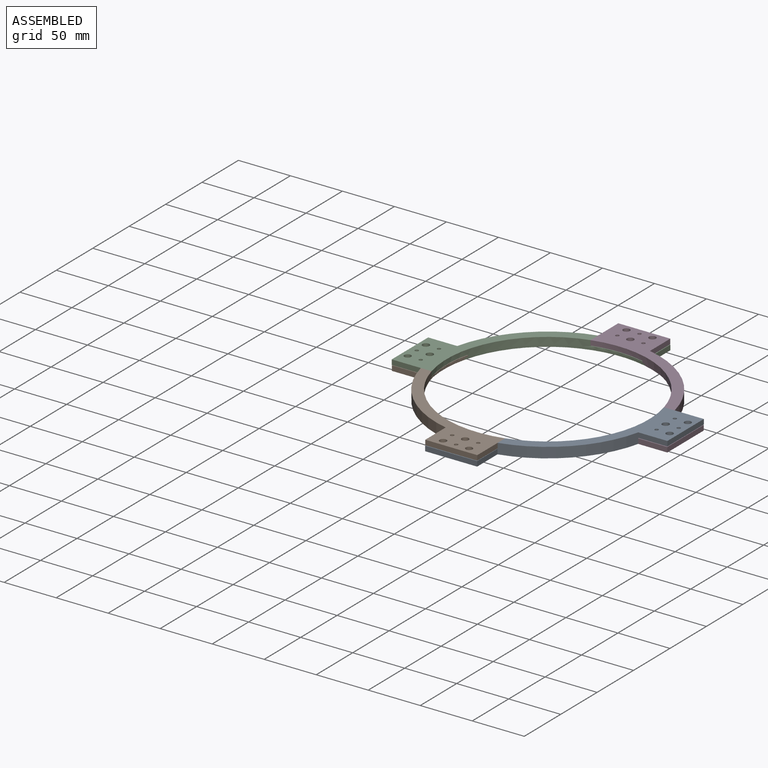
[diagram: assembled view]
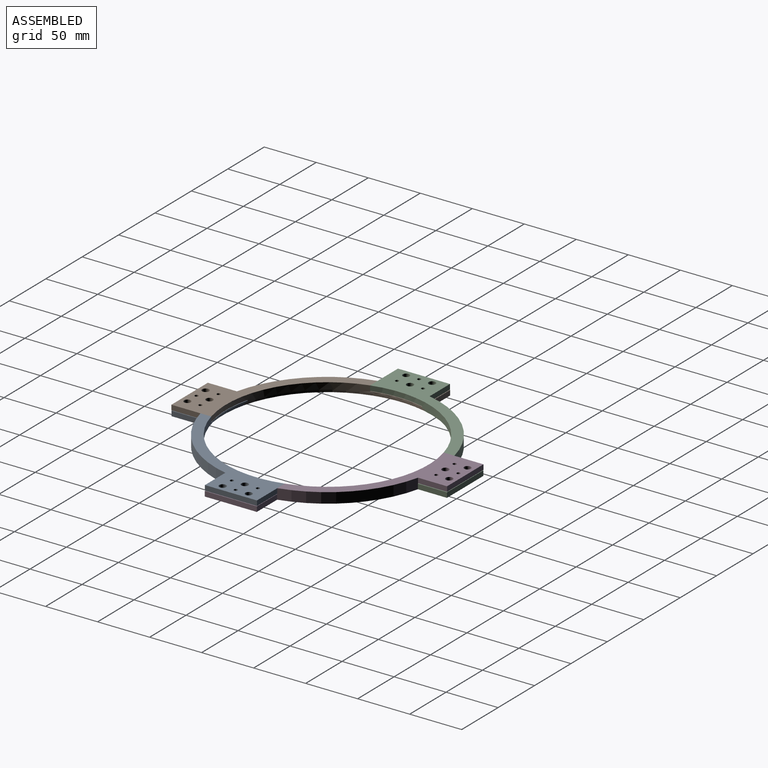
[diagram: assembled view, second angle]
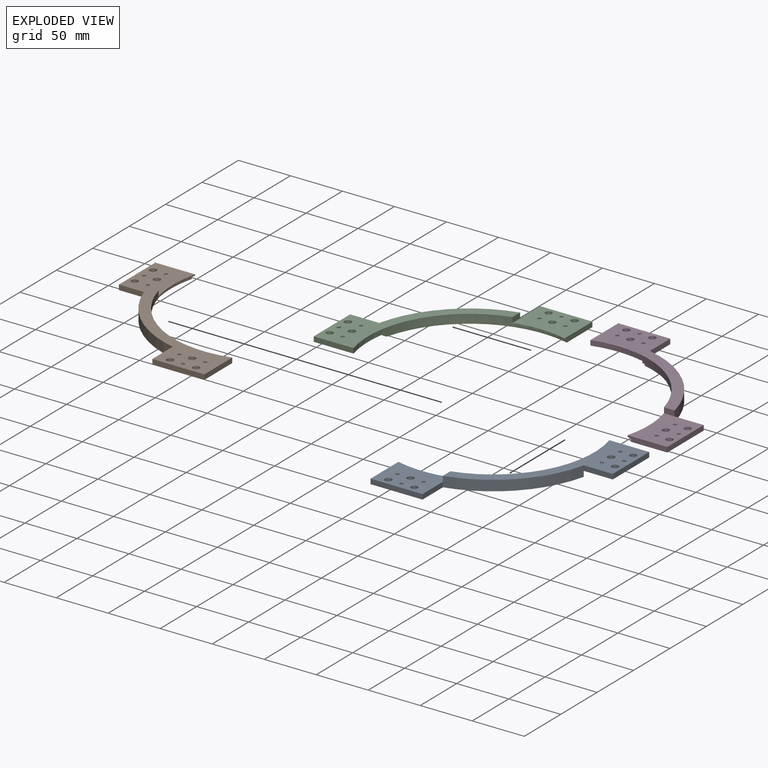
[diagram: exploded view]
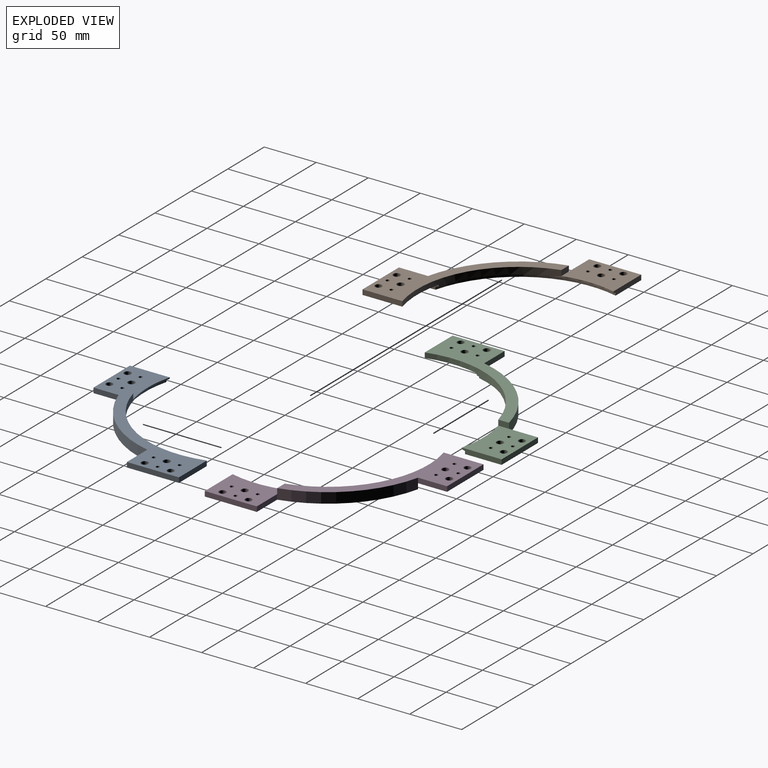
[diagram: exploded view, second angle]
ASSEMBLY  parts=4 mates=3
PART A: 32 faces, bbox 157.5x157.6x10 mm
  f0: plane 38.29x4.8mm, normal (0,-1,0), area 174.3mm2, adj f2,f6,f17,f25,f26,f27,f31
  f1: plane 10.31x5.2mm, normal (-1,0,0), area 44.1mm2, adj f2,f4,f6,f16,f26,f30,f31
  f2: cylinder r=97.5mm len=122.63mm, axis (0,0,-1), area 968.4mm2, adj f0,f1,f3,f5,f8,f16,f25,f31
  f3: plane 10.31x5.2mm, normal (0,-1,0), area 53.6mm2, adj f2,f4,f5,f25
  f4: cylinder r=107.5mm len=79.68mm, axis (0,0,-1), area 1185.3mm2, adj f1,f3,f5,f6,f7,f23
  f5: plane 129.58x107.63mm, normal (0,0,1), area 2782.4mm2, adj f2,f3,f4,f7,f8,f9,f10,f11
  f6: plane 129.68x107.5mm, normal (0,0,-1), area 2315.5mm2, adj f0,f1,f4,f17,f18,f19,f20,f21
  f7: plane 27.95x4.8mm, normal (1,0,0), area 134.1mm2, adj f4,f5,f14,f16
  f8: plane 38.26x4.8mm, normal (-1,0,0), area 183.6mm2, adj f2,f5,f14,f16
  f9: cylinder r=3.2mm len=6.4mm, axis (0,0,1), area 96.5mm2, adj f5,f16
  f10: cylinder r=1.7mm len=4.8mm, axis (0,0,1), area 51.3mm2, adj f5,f16
  f11: cylinder r=3.3mm len=6.6mm, axis (0,0,1), area 99.5mm2, adj f5,f16
  f12: cylinder r=1.7mm len=4.8mm, axis (0,0,1), area 51.3mm2, adj f5,f16
  f13: cylinder r=1.7mm len=4.8mm, axis (0,0,1), area 51.3mm2, adj f5,f16
  f14: plane 50x4.8mm, normal (0,1,0), area 240mm2, adj f5,f7,f8,f16
  f15: cylinder r=3.3mm len=6.6mm, axis (0,0,1), area 99.5mm2, adj f5,f16
  f16: plane 50x38.26mm, normal (0,0,-1), area 1676.1mm2, adj f1,f2,f7,f8,f9,f10,f11,f12
  f17: plane 50x4.8mm, normal (1,0,0), area 240mm2, adj f0,f6,f23,f25
  f18: cylinder r=1.7mm len=4.8mm, axis (0,0,-1), area 51.3mm2, adj f6,f25
  f19: cylinder r=3.2mm len=6.4mm, axis (0,0,-1), area 96.5mm2, adj f6,f25
  f20: cylinder r=1.7mm len=4.8mm, axis (0,0,-1), area 51.3mm2, adj f6,f25
  f21: cylinder r=3.3mm len=6.6mm, axis (0,0,-1), area 99.5mm2, adj f6,f25
  f22: cylinder r=1.7mm len=4.8mm, axis (0,0,-1), area 51.3mm2, adj f6,f25
  f23: plane 27.92x4.8mm, normal (0,1,0), area 134mm2, adj f4,f6,f17,f25
  f24: cylinder r=3.3mm len=6.6mm, axis (0,0,-1), area 99.5mm2, adj f6,f25
  f25: plane 50x38.29mm, normal (0,0,1), area 1676.1mm2, adj f0,f2,f3,f17,f18,f19,f20,f21
  f26: plane 122.47x75.5mm, normal (0,0,-1), area 91.5mm2, adj f0,f1,f27,f28,f29,f30,f31
  f27: plane 2.75x0.69mm, normal (-0.97,0.25,0), area 2mm2, adj f0,f6,f26,f28
  f28: cylinder r=100.5mm len=48.86mm, axis (0,0,-1), area 135.7mm2, adj f6,f26,f27,f29
  f29: plane 2.75x0.44mm, normal (-0.97,-0.25,0), area 1.3mm2, adj f6,f26,f28,f30
  f30: cylinder r=100.5mm len=72.47mm, axis (0,0,-1), area 295.5mm2, adj f1,f6,f26,f29
  f31: revolved ~121.87x74.92mm, area 395.4mm2, adj f0,f1,f2,f26
PART B: same geometry as A
PART C: same geometry as A
PART D: same geometry as A
PLACE A rot(axis=(0,0,-1),90deg) t=(-76.6,-72.67,-13.76)mm
PLACE B rot(axis=(0,0,1),180deg) t=(-76.6,-72.67,-13.76)mm
PLACE C rot(axis=(0,0,1),90deg) t=(-76.6,-72.67,-13.76)mm
PLACE D t=(-76.6,-72.67,-13.76)mm
MATE fastened A.f10 <-> D.f20  axis (0,0,-1) through (36.8,-60.17,-8.56)mm
MATE fastened C.f18 <-> D.f12  axis (0,0,1) through (-64.1,40.73,-8.96)mm
MATE fastened B.f10 <-> A.f20  axis (0,0,-1) through (-64.1,-186.07,-8.56)mm
